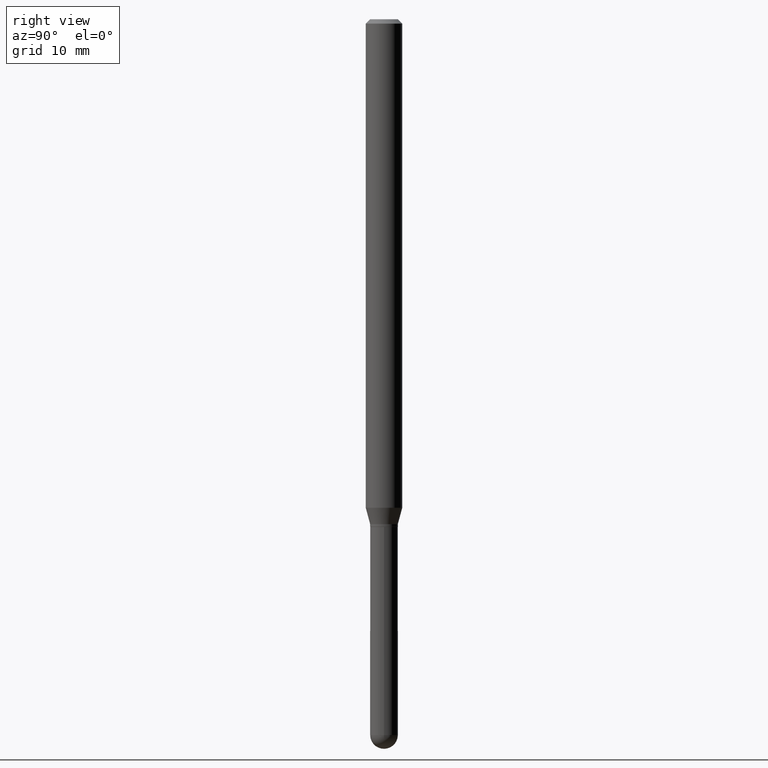
[diagram: clean part render]
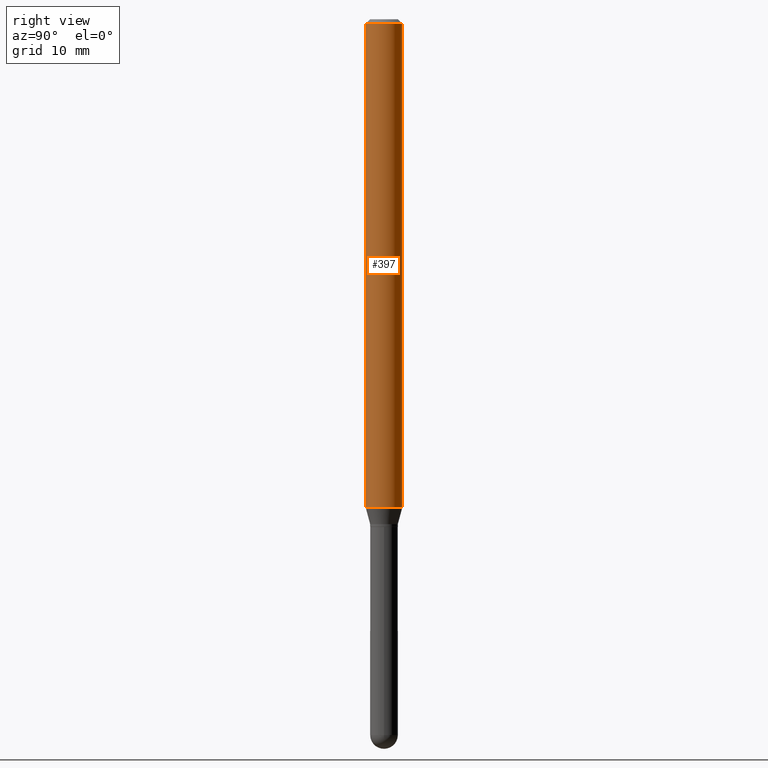
[diagram: same view with one face highlighted and labeled with its STEP entity id]
A machine part, right view. The second image highlights one B-rep face of the part: STEP entity #397.
In plain terms, the highlighted cylindrical surface (edge-blend (fillet) strip) has radius 1.5875 mm, axis along (-0, 0, 1).
Its self-contained STEP definition (entity closure, byte-faithful):
#25 = DIRECTION ( 'NONE',  ( -6.982962677686265922E-15, -1.000000000000000000, 3.483106191921935554E-15 ) ) ;
#27 = ORIENTED_EDGE ( 'NONE', *, *, #421, .T. ) ;
#29 = CARTESIAN_POINT ( 'NONE',  ( 0.000000000000000000, 0.000000000000000000, 0.000000000000000000 ) ) ;
#35 = VERTEX_POINT ( 'NONE', #370 ) ;
#41 = DIRECTION ( 'NONE',  ( -6.982962677686265922E-15, -1.000000000000000000, 3.491487438542514721E-15 ) ) ;
#44 = EDGE_CURVE ( 'NONE', #35, #348, #289, .T. ) ;
#65 = VECTOR ( 'NONE', #221, 39.37007874015748143 ) ;
#141 = CARTESIAN_POINT ( 'NONE',  ( -4.364351673553912750E-16, -0.06250000000000005551, -0.01499999999999984852 ) ) ;
#148 = FACE_OUTER_BOUND ( 'NONE', #158, .T. ) ;
#158 = EDGE_LOOP ( 'NONE', ( #27, #388, #182, #259 ) ) ;
#159 = CIRCLE ( 'NONE', #446, 0.06250000000000000000 ) ;
#180 = CARTESIAN_POINT ( 'NONE',  ( 4.440892098501036369E-16, 0.06249999999999418521, -1.674019237886466227 ) ) ;
#182 = ORIENTED_EDGE ( 'NONE', *, *, #362, .F. ) ;
#190 = CARTESIAN_POINT ( 'NONE',  ( 4.440892098500625669E-16, 0.06250000000000000000, -2.182179649089071701E-16 ) ) ;
#192 = CARTESIAN_POINT ( 'NONE',  ( 4.093754696892138762E-29, -5.844817140959110406E-15, -1.674019237886465783 ) ) ;
#212 = AXIS2_PLACEMENT_3D ( 'NONE', #192, #347, #308 ) ;
#221 = DIRECTION ( 'NONE',  ( -2.445464546787832633E-29, 3.491487438542514327E-15, 1.000000000000000000 ) ) ;
#254 = CARTESIAN_POINT ( 'NONE',  ( 3.668196820181765152E-31, -5.237231157813794490E-17, -0.01500000000000006710 ) ) ;
#257 = LINE ( 'NONE', #190, #65 ) ;
#259 = ORIENTED_EDGE ( 'NONE', *, *, #44, .F. ) ;
#289 = LINE ( 'NONE', #321, #368 ) ;
#308 = DIRECTION ( 'NONE',  ( -6.982962677686265922E-15, -1.000000000000000000, 4.370956789862821150E-15 ) ) ;
#315 = VERTEX_POINT ( 'NONE', #180 ) ;
#321 = CARTESIAN_POINT ( 'NONE',  ( -4.364351673553916201E-16, -0.06250000000000000000, 2.182179649089071701E-16 ) ) ;
#337 = AXIS2_PLACEMENT_3D ( 'NONE', #29, #465, #41 ) ;
#347 = DIRECTION ( 'NONE',  ( -2.445464546787832633E-29, 3.491487438542514721E-15, 1.000000000000000000 ) ) ;
#348 = VERTEX_POINT ( 'NONE', #141 ) ;
#362 = EDGE_CURVE ( 'NONE', #348, #504, #159, .T. ) ;
#368 = VECTOR ( 'NONE', #399, 39.37007874015748143 ) ;
#370 = CARTESIAN_POINT ( 'NONE',  ( -4.364351673553505007E-16, -0.06250000000000581479, -1.674019237886465561 ) ) ;
#388 = ORIENTED_EDGE ( 'NONE', *, *, #488, .T. ) ;
#389 = CYLINDRICAL_SURFACE ( 'NONE', #337, 0.06250000000000000000 ) ;
#397 = ADVANCED_FACE ( 'NONE', ( #148 ), #389, .T. ) ;
#399 = DIRECTION ( 'NONE',  ( -2.445464546787832633E-29, 3.491487438542514327E-15, 1.000000000000000000 ) ) ;
#414 = DIRECTION ( 'NONE',  ( -2.445464546787832633E-29, 3.491487438542514721E-15, 1.000000000000000000 ) ) ;
#421 = EDGE_CURVE ( 'NONE', #35, #315, #439, .T. ) ;
#429 = CARTESIAN_POINT ( 'NONE',  ( 4.440892098501038342E-16, 0.06249999999999995143, -0.01500000000000028394 ) ) ;
#439 = CIRCLE ( 'NONE', #212, 0.06250000000000000000 ) ;
#446 = AXIS2_PLACEMENT_3D ( 'NONE', #254, #414, #25 ) ;
#465 = DIRECTION ( 'NONE',  ( -2.445464546787832633E-29, 3.491487438542514721E-15, 1.000000000000000000 ) ) ;
#488 = EDGE_CURVE ( 'NONE', #315, #504, #257, .T. ) ;
#504 = VERTEX_POINT ( 'NONE', #429 ) ;